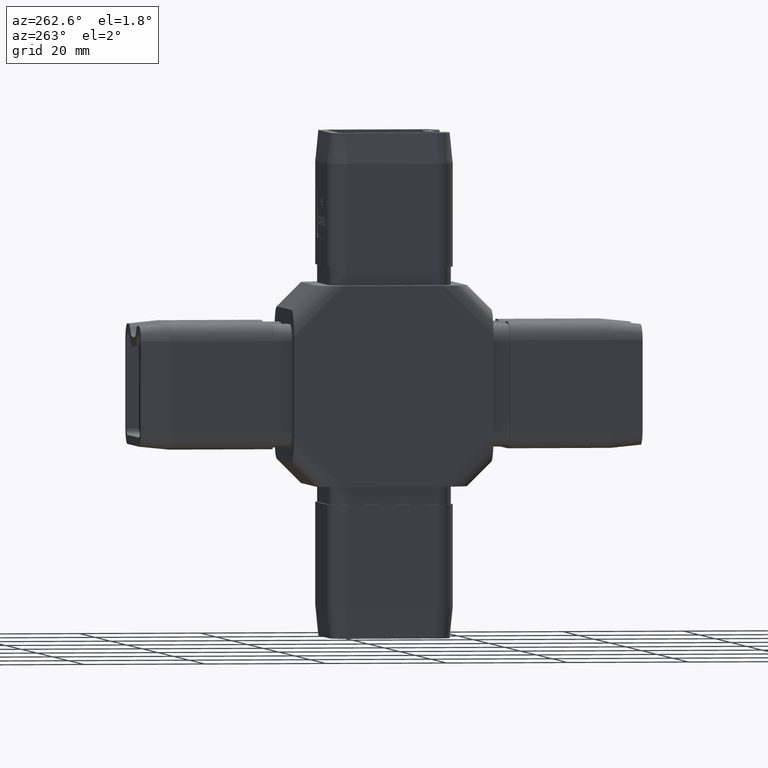
[diagram: clean part render]
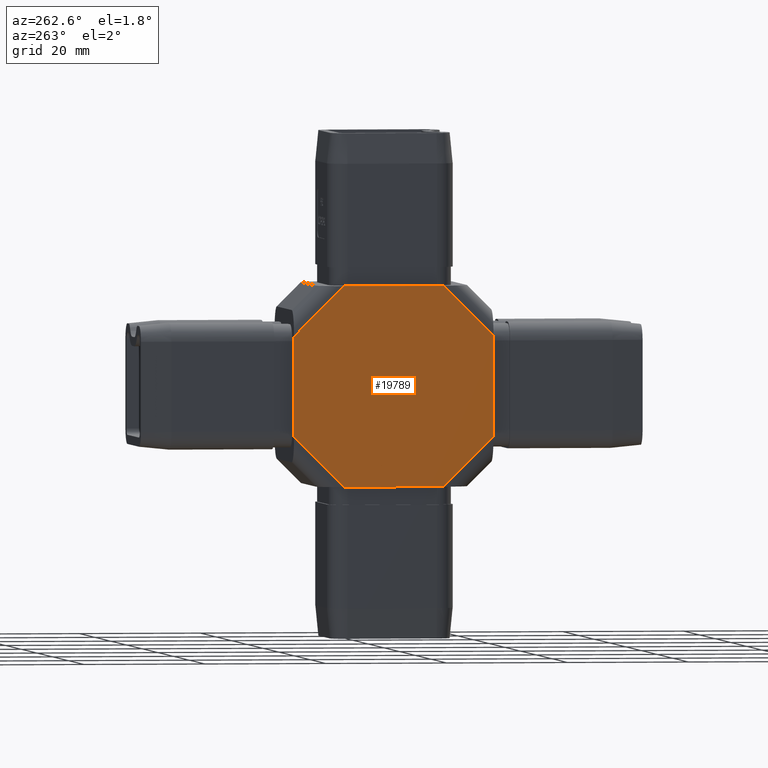
[diagram: same view with one face highlighted and labeled with its STEP entity id]
A machine part, auxiliary view. The second image highlights one B-rep face of the part: STEP entity #19789.
In plain terms, the highlighted planar face has unit normal (1, 0, -0).
Its self-contained STEP definition (entity closure, byte-faithful):
#338 = VECTOR ( 'NONE', #9175, 1000.000000000000000 ) ;
#908 = LINE ( 'NONE', #31124, #29944 ) ;
#1474 = CARTESIAN_POINT ( 'NONE',  ( -12.50000000000000000, -14.37867965644036300, -10.37867965644036000 ) ) ;
#1687 = CARTESIAN_POINT ( 'NONE',  ( -12.50000000000000000, -8.257359312880726800, 16.50000000000000000 ) ) ;
#1964 = EDGE_CURVE ( 'NONE', #22756, #21426, #21521, .T. ) ;
#2201 = EDGE_CURVE ( 'NONE', #13144, #24620, #19600, .T. ) ;
#3750 = DIRECTION ( 'NONE',  ( -0.0000000000000000000, -0.0000000000000000000, -1.000000000000000000 ) ) ;
#4102 = DIRECTION ( 'NONE',  ( -0.0000000000000000000, -0.0000000000000000000, -1.000000000000000000 ) ) ;
#4199 = ORIENTED_EDGE ( 'NONE', *, *, #15270, .T. ) ;
#4291 = CARTESIAN_POINT ( 'NONE',  ( -12.50000000000000400, 16.50000000000000400, -8.257359312880693000 ) ) ;
#5273 = LINE ( 'NONE', #8034, #23067 ) ;
#5476 = VERTEX_POINT ( 'NONE', #21324 ) ;
#6307 = DIRECTION ( 'NONE',  ( 7.434149899070923700E-017, -0.7071067811865493500, 0.7071067811865456900 ) ) ;
#6657 = EDGE_CURVE ( 'NONE', #23068, #13144, #908, .T. ) ;
#7151 = ORIENTED_EDGE ( 'NONE', *, *, #16934, .F. ) ;
#7381 = DIRECTION ( 'NONE',  ( -1.051347561198064800E-016, 1.000000000000000000, 0.0000000000000000000 ) ) ;
#7879 = DIRECTION ( 'NONE',  ( 1.051347561198064800E-016, -1.000000000000000000, 0.0000000000000000000 ) ) ;
#8034 = CARTESIAN_POINT ( 'NONE',  ( -12.50000000000000000, -10.37867965644035100, 14.37867965644036300 ) ) ;
#8146 = EDGE_CURVE ( 'NONE', #21426, #23068, #13739, .T. ) ;
#8897 = CARTESIAN_POINT ( 'NONE',  ( -12.50000000000000400, 16.50000000000000400, 8.257359312880732100 ) ) ;
#9175 = DIRECTION ( 'NONE',  ( -7.434149899070923700E-017, 0.7071067811865493500, -0.7071067811865456900 ) ) ;
#9229 = CARTESIAN_POINT ( 'NONE',  ( -12.50000000000000000, -16.49999999999999600, 8.257359312880687700 ) ) ;
#9743 = CARTESIAN_POINT ( 'NONE',  ( -12.50000000000000400, 16.50000000000000400, 16.50000000000000000 ) ) ;
#11432 = CARTESIAN_POINT ( 'NONE',  ( -12.50000000000000400, 14.37867965644036900, 10.37867965644035600 ) ) ;
#12029 = ORIENTED_EDGE ( 'NONE', *, *, #20272, .F. ) ;
#12072 = DIRECTION ( 'NONE',  ( 1.000000000000000000, 1.051347561198064800E-016, -0.0000000000000000000 ) ) ;
#12109 = LINE ( 'NONE', #12972, #13994 ) ;
#12972 = CARTESIAN_POINT ( 'NONE',  ( -12.50000000000000400, 16.50000000000000400, 16.50000000000000000 ) ) ;
#13144 = VERTEX_POINT ( 'NONE', #26872 ) ;
#13739 = LINE ( 'NONE', #22994, #25819 ) ;
#13994 = VECTOR ( 'NONE', #7879, 1000.000000000000000 ) ;
#14027 = FACE_OUTER_BOUND ( 'NONE', #28763, .T. ) ;
#14284 = DIRECTION ( 'NONE',  ( 1.051347561198064800E-016, -1.000000000000000000, 0.0000000000000000000 ) ) ;
#14577 = EDGE_CURVE ( 'NONE', #24620, #5476, #20869, .T. ) ;
#14736 = ORIENTED_EDGE ( 'NONE', *, *, #6657, .T. ) ;
#15059 = VERTEX_POINT ( 'NONE', #9229 ) ;
#15270 = EDGE_CURVE ( 'NONE', #15059, #18691, #5273, .T. ) ;
#16174 = ORIENTED_EDGE ( 'NONE', *, *, #14577, .T. ) ;
#16197 = VECTOR ( 'NONE', #14284, 1000.000000000000000 ) ;
#16350 = CARTESIAN_POINT ( 'NONE',  ( -12.50000000000000000, -16.49999999999999600, 16.50000000000000000 ) ) ;
#16934 = EDGE_CURVE ( 'NONE', #15059, #5476, #21135, .T. ) ;
#17126 = PLANE ( 'NONE',  #21027 ) ;
#18691 = VERTEX_POINT ( 'NONE', #1687 ) ;
#19600 = LINE ( 'NONE', #26230, #16197 ) ;
#19789 = ADVANCED_FACE ( 'NONE', ( #14027 ), #17126, .F. ) ;
#20155 = ORIENTED_EDGE ( 'NONE', *, *, #8146, .T. ) ;
#20272 = EDGE_CURVE ( 'NONE', #22756, #18691, #12109, .T. ) ;
#20869 = LINE ( 'NONE', #1474, #25001 ) ;
#21027 = AXIS2_PLACEMENT_3D ( 'NONE', #9743, #12072, #7381 ) ;
#21135 = LINE ( 'NONE', #16350, #21891 ) ;
#21324 = CARTESIAN_POINT ( 'NONE',  ( -12.50000000000000000, -16.49999999999999600, -8.257359312880741000 ) ) ;
#21390 = ORIENTED_EDGE ( 'NONE', *, *, #1964, .T. ) ;
#21426 = VERTEX_POINT ( 'NONE', #8897 ) ;
#21521 = LINE ( 'NONE', #11432, #338 ) ;
#21891 = VECTOR ( 'NONE', #4102, 1000.000000000000000 ) ;
#22335 = DIRECTION ( 'NONE',  ( -7.434149899070884300E-017, 0.7071067811865456900, 0.7071067811865493500 ) ) ;
#22756 = VERTEX_POINT ( 'NONE', #26395 ) ;
#22994 = CARTESIAN_POINT ( 'NONE',  ( -12.50000000000000400, 16.50000000000000400, 16.50000000000000000 ) ) ;
#23067 = VECTOR ( 'NONE', #22335, 1000.000000000000000 ) ;
#23068 = VERTEX_POINT ( 'NONE', #4291 ) ;
#24620 = VERTEX_POINT ( 'NONE', #25064 ) ;
#25001 = VECTOR ( 'NONE', #6307, 1000.000000000000000 ) ;
#25064 = CARTESIAN_POINT ( 'NONE',  ( -12.50000000000000000, -8.257359312880693000, -16.50000000000000000 ) ) ;
#25819 = VECTOR ( 'NONE', #3750, 1000.000000000000000 ) ;
#26230 = CARTESIAN_POINT ( 'NONE',  ( -12.50000000000000400, 16.50000000000000400, -16.50000000000000000 ) ) ;
#26395 = CARTESIAN_POINT ( 'NONE',  ( -12.50000000000000400, 8.257359312880694800, 16.50000000000000000 ) ) ;
#26509 = DIRECTION ( 'NONE',  ( 7.434149899070884300E-017, -0.7071067811865456900, -0.7071067811865493500 ) ) ;
#26609 = ORIENTED_EDGE ( 'NONE', *, *, #2201, .T. ) ;
#26872 = CARTESIAN_POINT ( 'NONE',  ( -12.50000000000000400, 8.257359312880741000, -16.50000000000000000 ) ) ;
#28763 = EDGE_LOOP ( 'NONE', ( #20155, #14736, #26609, #16174, #7151, #4199, #12029, #21390 ) ) ;
#29944 = VECTOR ( 'NONE', #26509, 1000.000000000000000 ) ;
#31124 = CARTESIAN_POINT ( 'NONE',  ( -12.50000000000000400, 10.37867965644036200, -14.37867965644036700 ) ) ;